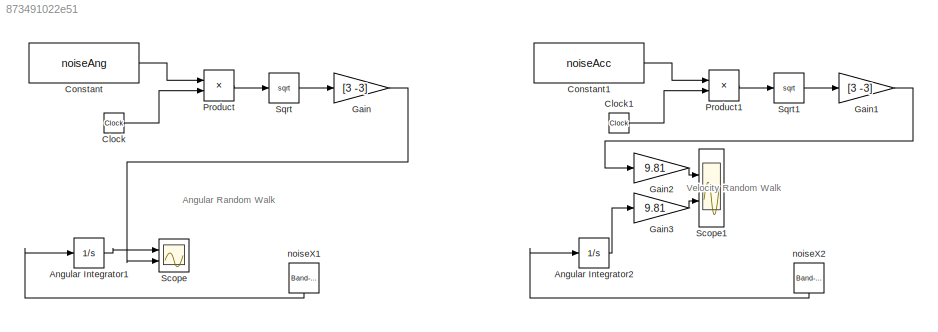
MODEL slx_873491022e51
KIND model
CONFIG AbsTol = auto
CONFIG EnableMultiTasking = off
CONFIG FixedStep = auto
CONFIG MaxStep = auto
CONFIG MinStep = auto
CONFIG RelTol = 1e-3
CONFIG SampleTimeConstraint = Unconstrained
CONFIG SolverName = VariableStepAuto
CONFIG StartTime = 0.0
CONFIG StopTime = 3600
BLOCK [Integrator] Angular Integrator1
  Ports = [1, 1]
BLOCK [Integrator] Angular Integrator2
  Ports = [1, 1]
BLOCK [Clock] Clock
BLOCK [Clock] Clock1
BLOCK [Constant] Constant
  Value = noiseAng
BLOCK [Constant] Constant1
  Value = noiseAcc
BLOCK [Gain] Gain
  Gain = [3 -3]
BLOCK [Gain] Gain1
  Gain = [3 -3]
BLOCK [Gain] Gain2
  Gain = 9.81
BLOCK [Gain] Gain3
  Gain = 9.81
BLOCK [Product] Product
  Ports = [2, 1]
BLOCK [Product] Product1
  Ports = [2, 1]
BLOCK [Scope] Scope
  Floating = off
  NumInputPorts = 2
  Ports = [2]
  ScopeSpecificationString = Simulink.scopes.TimeScopeBlockCfg('CurrentConfiguration', extmgr.ConfigurationSet(extmgr.Configuration('Core','General UI',true),extmgr.Configuration('Core','Source UI',true),extmgr.Configuration('Sources','WiredSimulink',true,'DataLoggingVariableName','ScopeData1'),extmgr.Configuration('Visuals','Time Domain',true,'SerializedDisplays',{struct('MinYLimReal','-0.5625','MaxYLimReal','0.5625','YLabel...<+4037ch>
BLOCK [Scope] Scope1
  Floating = off
  NumInputPorts = 2
  Ports = [2]
  ScopeSpecificationString = Simulink.scopes.TimeScopeBlockCfg('CurrentConfiguration', extmgr.ConfigurationSet(extmgr.Configuration('Core','General UI',true),extmgr.Configuration('Core','Source UI',true),extmgr.Configuration('Sources','WiredSimulink',true),extmgr.Configuration('Visuals','Time Domain',true,'SerializedDisplays',{struct('MinYLimReal','-0.26249','MaxYLimReal','0.26249','YLabelReal','','MinYLimMag','0.00000','MaxY...<+1352ch>
BLOCK [Sqrt] Sqrt
BLOCK [Sqrt] Sqrt1
BLOCK [Reference] noiseX1  REF=simulink/Sources/Band-Limited
White Noise
  NameLocation = left
  Ports = [0, 1]
  SourceBlock = simulink/Sources/Band-Limited\nWhite Noise
  SourceProductBaseCode = SL
  SourceType = Band-Limited White Noise.
BLOCK [Reference] noiseX2  REF=simulink/Sources/Band-Limited
White Noise
  NameLocation = left
  Ports = [0, 1]
  SourceBlock = simulink/Sources/Band-Limited\nWhite Noise
  SourceProductBaseCode = SL
  SourceType = Band-Limited White Noise.
ANNOTATION (root): Angular Random Walk
ANNOTATION (root): Velocity Random Walk
LINE Angular Integrator1:1 -> Scope:1
LINE Angular Integrator2:1 -> Gain3:1
LINE Clock1:1 -> Product1:2
LINE Clock:1 -> Product:2
LINE Constant1:1 -> Product1:1
LINE Constant:1 -> Product:1
LINE Gain1:1 -> Gain2:1
LINE Gain2:1 -> Scope1:1
LINE Gain3:1 -> Scope1:2
LINE Gain:1 -> Scope:2
LINE Product1:1 -> Sqrt1:1
LINE Product:1 -> Sqrt:1
LINE Sqrt1:1 -> Gain1:1
LINE Sqrt:1 -> Gain:1
LINE noiseX1:1 -> Angular Integrator1:1
LINE noiseX2:1 -> Angular Integrator2:1
